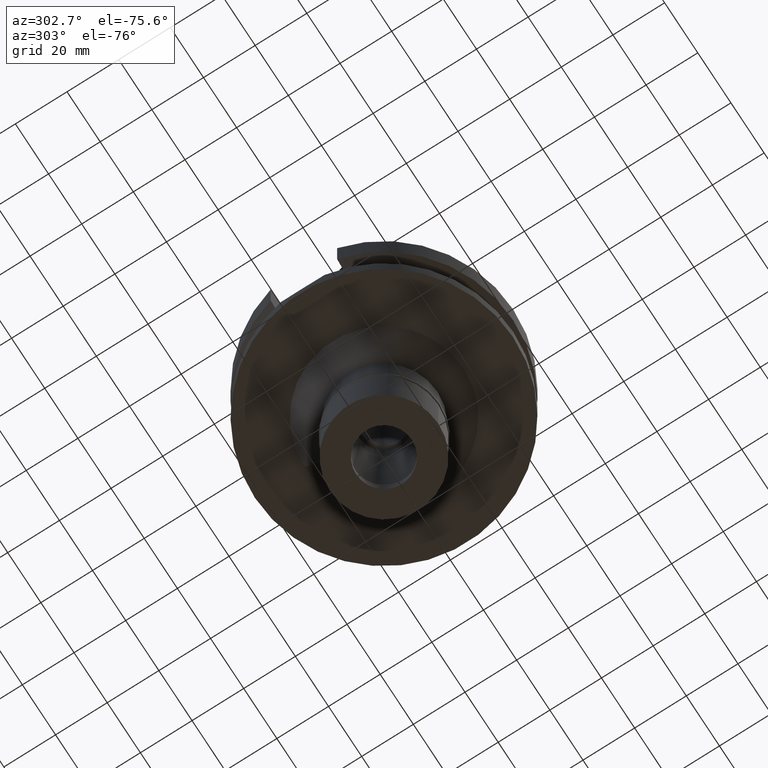
[diagram: clean part render]
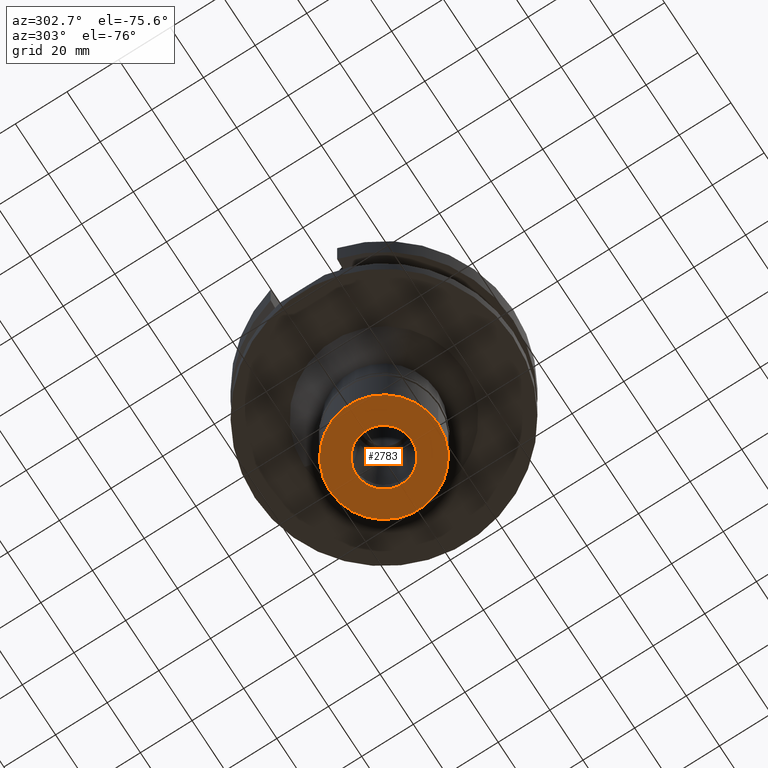
[diagram: same view with one face highlighted and labeled with its STEP entity id]
A machine part, auxiliary view. The second image highlights one B-rep face of the part: STEP entity #2783.
In plain terms, the highlighted planar face has unit normal (0, 0, -1).
Its self-contained STEP definition (entity closure, byte-faithful):
#40 = CARTESIAN_POINT ( 'NONE',  ( 0.0000000000000000000, -21.00000000000000000, -27.09999999999999787 ) ) ;
#44 = CARTESIAN_POINT ( 'NONE',  ( 0.0000000000000000000, 10.75000000000000000, -27.09999999999999787 ) ) ;
#53 = DIRECTION ( 'NONE',  ( 0.0000000000000000000, 0.0000000000000000000, -1.000000000000000000 ) ) ;
#126 = AXIS2_PLACEMENT_3D ( 'NONE', #2028, #2041, #2539 ) ;
#196 = CIRCLE ( 'NONE', #454, 21.00000000000000000 ) ;
#352 = VERTEX_POINT ( 'NONE', #44 ) ;
#454 = AXIS2_PLACEMENT_3D ( 'NONE', #986, #1529, #1498 ) ;
#484 = CARTESIAN_POINT ( 'NONE',  ( 0.0000000000000000000, 0.0000000000000000000, -27.09999999999999787 ) ) ;
#542 = CARTESIAN_POINT ( 'NONE',  ( 0.0000000000000000000, 0.0000000000000000000, -27.09999999999999787 ) ) ;
#633 = CIRCLE ( 'NONE', #126, 21.00000000000000000 ) ;
#723 = VERTEX_POINT ( 'NONE', #2913 ) ;
#726 = AXIS2_PLACEMENT_3D ( 'NONE', #542, #2437, #888 ) ;
#766 = EDGE_CURVE ( 'NONE', #979, #352, #2373, .T. ) ;
#844 = EDGE_CURVE ( 'NONE', #1436, #723, #633, .T. ) ;
#888 = DIRECTION ( 'NONE',  ( 0.0000000000000000000, -1.000000000000000000, 0.0000000000000000000 ) ) ;
#907 = ORIENTED_EDGE ( 'NONE', *, *, #1739, .F. ) ;
#979 = VERTEX_POINT ( 'NONE', #2525 ) ;
#986 = CARTESIAN_POINT ( 'NONE',  ( 0.0000000000000000000, 0.0000000000000000000, -27.09999999999999787 ) ) ;
#1063 = DIRECTION ( 'NONE',  ( 0.0000000000000000000, -1.000000000000000000, 0.0000000000000000000 ) ) ;
#1210 = DIRECTION ( 'NONE',  ( 0.0000000000000000000, 1.000000000000000000, 0.0000000000000000000 ) ) ;
#1255 = EDGE_CURVE ( 'NONE', #352, #979, #1440, .T. ) ;
#1386 = AXIS2_PLACEMENT_3D ( 'NONE', #1528, #1786, #1063 ) ;
#1436 = VERTEX_POINT ( 'NONE', #40 ) ;
#1440 = CIRCLE ( 'NONE', #2126, 10.75000000000000000 ) ;
#1466 = ORIENTED_EDGE ( 'NONE', *, *, #844, .F. ) ;
#1498 = DIRECTION ( 'NONE',  ( 0.0000000000000000000, 1.000000000000000000, 0.0000000000000000000 ) ) ;
#1503 = PLANE ( 'NONE',  #726 ) ;
#1528 = CARTESIAN_POINT ( 'NONE',  ( 0.0000000000000000000, 0.0000000000000000000, -27.09999999999999787 ) ) ;
#1529 = DIRECTION ( 'NONE',  ( 0.0000000000000000000, 0.0000000000000000000, 1.000000000000000000 ) ) ;
#1739 = EDGE_CURVE ( 'NONE', #723, #1436, #196, .T. ) ;
#1786 = DIRECTION ( 'NONE',  ( 0.0000000000000000000, 0.0000000000000000000, -1.000000000000000000 ) ) ;
#1792 = EDGE_LOOP ( 'NONE', ( #907, #1466 ) ) ;
#2012 = EDGE_LOOP ( 'NONE', ( #2354, #2620 ) ) ;
#2028 = CARTESIAN_POINT ( 'NONE',  ( 0.0000000000000000000, 0.0000000000000000000, -27.09999999999999787 ) ) ;
#2041 = DIRECTION ( 'NONE',  ( 0.0000000000000000000, 0.0000000000000000000, 1.000000000000000000 ) ) ;
#2126 = AXIS2_PLACEMENT_3D ( 'NONE', #484, #53, #1210 ) ;
#2354 = ORIENTED_EDGE ( 'NONE', *, *, #1255, .F. ) ;
#2373 = CIRCLE ( 'NONE', #1386, 10.75000000000000000 ) ;
#2437 = DIRECTION ( 'NONE',  ( 0.0000000000000000000, 0.0000000000000000000, -1.000000000000000000 ) ) ;
#2525 = CARTESIAN_POINT ( 'NONE',  ( 0.0000000000000000000, -10.75000000000000000, -27.09999999999999787 ) ) ;
#2539 = DIRECTION ( 'NONE',  ( 0.0000000000000000000, -1.000000000000000000, 0.0000000000000000000 ) ) ;
#2620 = ORIENTED_EDGE ( 'NONE', *, *, #766, .F. ) ;
#2664 = FACE_BOUND ( 'NONE', #2012, .T. ) ;
#2681 = FACE_OUTER_BOUND ( 'NONE', #1792, .T. ) ;
#2783 = ADVANCED_FACE ( 'NONE', ( #2681, #2664 ), #1503, .T. ) ;
#2913 = CARTESIAN_POINT ( 'NONE',  ( 0.0000000000000000000, 21.00000000000000000, -27.09999999999999787 ) ) ;